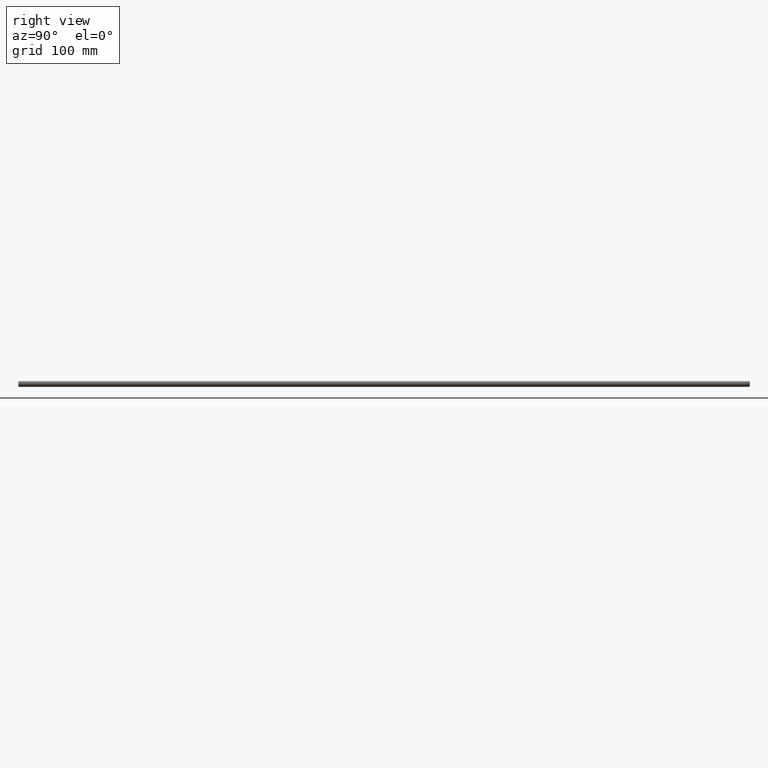
[diagram: clean part render]
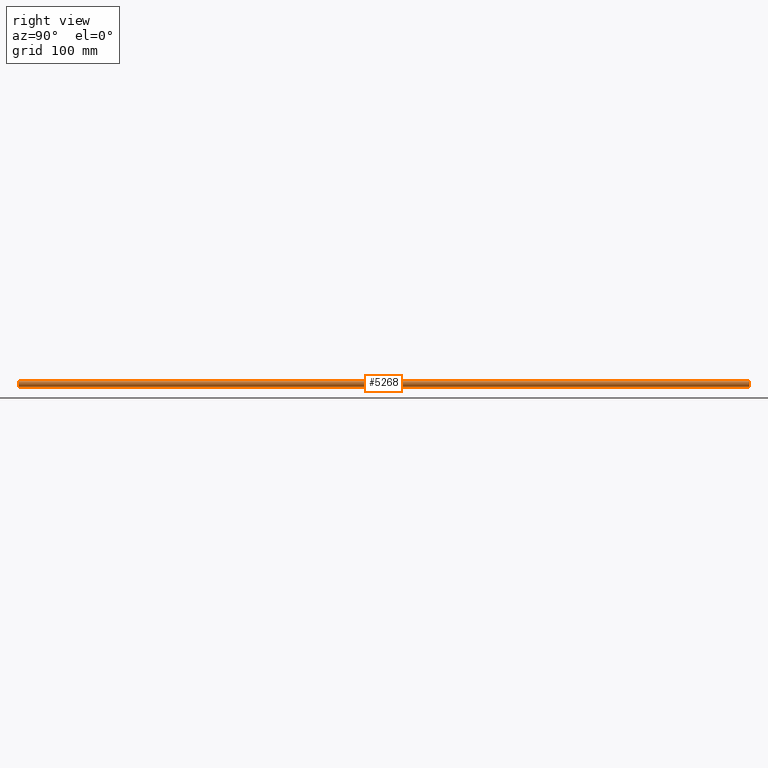
[diagram: same view with one face highlighted and labeled with its STEP entity id]
A machine part, right view. The second image highlights one B-rep face of the part: STEP entity #5268.
In plain terms, the highlighted cylindrical surface (bore or boss wall) has radius 4 mm, axis along (-0, -1, -0).
Its self-contained STEP definition (entity closure, byte-faithful):
#996 = CIRCLE ( 'NONE', #9467, 4.000000000000000000 ) ;
#1364 = CYLINDRICAL_SURFACE ( 'NONE', #7597, 4.000000000000000000 ) ;
#1963 = FACE_OUTER_BOUND ( 'NONE', #15363, .T. ) ;
#2047 = DIRECTION ( 'NONE',  ( 0.0000000000000000000, 0.0000000000000000000, 1.000000000000000000 ) ) ;
#2952 = CARTESIAN_POINT ( 'NONE',  ( 0.0000000000000000000, 500.0000000000000000, 0.0000000000000000000 ) ) ;
#3141 = FACE_OUTER_BOUND ( 'NONE', #8257, .T. ) ;
#4515 = EDGE_CURVE ( 'NONE', #9859, #9859, #996, .T. ) ;
#5268 = ADVANCED_FACE ( 'NONE', ( #3141, #1963 ), #1364, .T. ) ;
#5352 = CARTESIAN_POINT ( 'NONE',  ( 0.0000000000000000000, 499.0000000000000000, 4.000000000000000000 ) ) ;
#6796 = DIRECTION ( 'NONE',  ( 0.0000000000000000000, 0.0000000000000000000, -1.000000000000000000 ) ) ;
#7096 = CARTESIAN_POINT ( 'NONE',  ( 0.0000000000000000000, 499.0000000000000000, 0.0000000000000000000 ) ) ;
#7597 = AXIS2_PLACEMENT_3D ( 'NONE', #2952, #7872, #6796 ) ;
#7872 = DIRECTION ( 'NONE',  ( -0.0000000000000000000, -1.000000000000000000, -0.0000000000000000000 ) ) ;
#8232 = DIRECTION ( 'NONE',  ( 0.0000000000000000000, -1.000000000000000000, 0.0000000000000000000 ) ) ;
#8257 = EDGE_LOOP ( 'NONE', ( #14326 ) ) ;
#9467 = AXIS2_PLACEMENT_3D ( 'NONE', #7096, #8232, #2047 ) ;
#9682 = VERTEX_POINT ( 'NONE', #12670 ) ;
#9859 = VERTEX_POINT ( 'NONE', #5352 ) ;
#11306 = EDGE_CURVE ( 'NONE', #9682, #9682, #11709, .T. ) ;
#11532 = DIRECTION ( 'NONE',  ( -0.0000000000000000000, 1.000000000000000000, -0.0000000000000000000 ) ) ;
#11636 = CARTESIAN_POINT ( 'NONE',  ( 0.0000000000000000000, -499.0000000000001100, 0.0000000000000000000 ) ) ;
#11709 = CIRCLE ( 'NONE', #15265, 4.000000000000000000 ) ;
#12670 = CARTESIAN_POINT ( 'NONE',  ( 0.0000000000000000000, -499.0000000000001100, 4.000000000000000000 ) ) ;
#12781 = DIRECTION ( 'NONE',  ( 0.0000000000000000000, 0.0000000000000000000, 1.000000000000000000 ) ) ;
#14036 = ORIENTED_EDGE ( 'NONE', *, *, #4515, .T. ) ;
#14326 = ORIENTED_EDGE ( 'NONE', *, *, #11306, .T. ) ;
#15265 = AXIS2_PLACEMENT_3D ( 'NONE', #11636, #11532, #12781 ) ;
#15363 = EDGE_LOOP ( 'NONE', ( #14036 ) ) ;